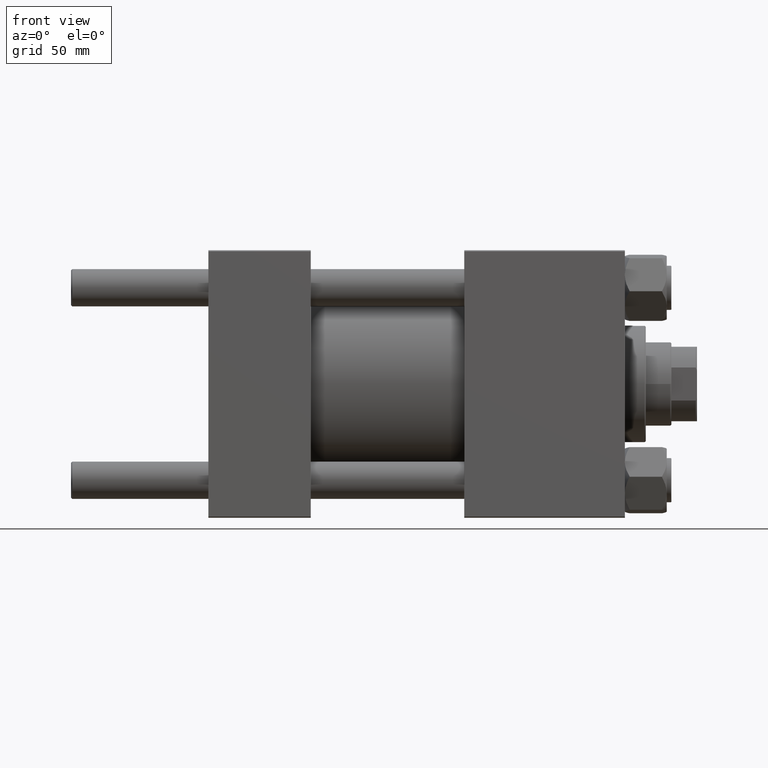
[diagram: clean part render]
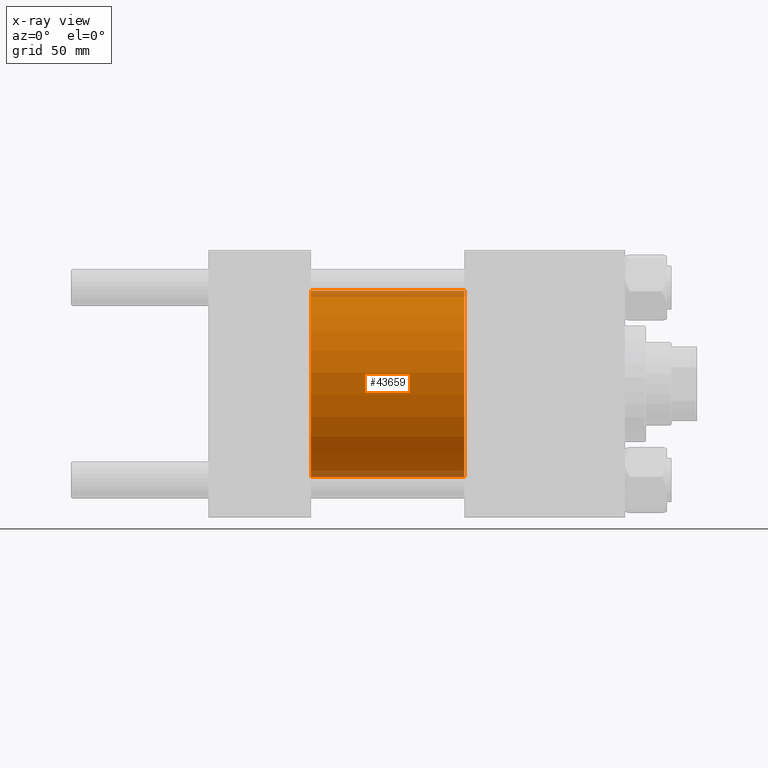
[diagram: x-ray — body ghosted, one internal face saturated and labeled with its STEP entity id]
A machine part, front view, then the same camera in x-ray: the body is ghosted and one INTERNAL B-rep face — a face not visible from any outside direction — is saturated and labeled: STEP entity #43659.
In plain terms, the highlighted cylindrical surface (partial cylindrical patch) has radius 40 mm, axis along (-1, -0, -0).
Its self-contained STEP definition (entity closure, byte-faithful):
#700 = ORIENTED_EDGE ( 'NONE', *, *, #24106, .T. ) ;
#990 = ORIENTED_EDGE ( 'NONE', *, *, #26961, .F. ) ;
#1231 = VERTEX_POINT ( 'NONE', #49771 ) ;
#1243 = CARTESIAN_POINT ( 'NONE',  ( 110.0000000000000000, 0.000000000000000000, 0.000000000000000000 ) ) ;
#1990 = DIRECTION ( 'NONE',  ( 0.000000000000000000, 0.000000000000000000, 1.000000000000000000 ) ) ;
#6398 = LINE ( 'NONE', #26242, #49351 ) ;
#11619 = CARTESIAN_POINT ( 'NONE',  ( 44.00000000000000000, 4.898587196589413026E-15, -40.00000000000000000 ) ) ;
#11653 = CIRCLE ( 'NONE', #47487, 40.00000000000000000 ) ;
#12141 = VERTEX_POINT ( 'NONE', #26754 ) ;
#13441 = FACE_OUTER_BOUND ( 'NONE', #50329, .T. ) ;
#15984 = DIRECTION ( 'NONE',  ( 1.000000000000000000, 0.000000000000000000, 0.000000000000000000 ) ) ;
#16336 = DIRECTION ( 'NONE',  ( 1.000000000000000000, 0.000000000000000000, 0.000000000000000000 ) ) ;
#16652 = AXIS2_PLACEMENT_3D ( 'NONE', #25001, #16336, #16848 ) ;
#16848 = DIRECTION ( 'NONE',  ( 0.000000000000000000, 0.000000000000000000, -1.000000000000000000 ) ) ;
#18110 = DIRECTION ( 'NONE',  ( -1.000000000000000000, -0.000000000000000000, -0.000000000000000000 ) ) ;
#19039 = EDGE_CURVE ( 'NONE', #23539, #47881, #22315, .T. ) ;
#19637 = ORIENTED_EDGE ( 'NONE', *, *, #19039, .F. ) ;
#20586 = ORIENTED_EDGE ( 'NONE', *, *, #36346, .T. ) ;
#20826 = CARTESIAN_POINT ( 'NONE',  ( 110.0000000000000000, 0.000000000000000000, 0.000000000000000000 ) ) ;
#21342 = CYLINDRICAL_SURFACE ( 'NONE', #45962, 40.00000000000000000 ) ;
#22315 = CIRCLE ( 'NONE', #16652, 40.00000000000000000 ) ;
#23539 = VERTEX_POINT ( 'NONE', #28372 ) ;
#24106 = EDGE_CURVE ( 'NONE', #1231, #47881, #6398, .T. ) ;
#25001 = CARTESIAN_POINT ( 'NONE',  ( 44.00000000000000000, 0.000000000000000000, 0.000000000000000000 ) ) ;
#26242 = CARTESIAN_POINT ( 'NONE',  ( 110.0000000000000000, 4.898587196589413026E-15, -40.00000000000000000 ) ) ;
#26754 = CARTESIAN_POINT ( 'NONE',  ( 110.0000000000000000, 0.000000000000000000, 40.00000000000000000 ) ) ;
#26961 = EDGE_CURVE ( 'NONE', #12141, #23539, #31933, .T. ) ;
#27094 = DIRECTION ( 'NONE',  ( -1.000000000000000000, -0.000000000000000000, -0.000000000000000000 ) ) ;
#28372 = CARTESIAN_POINT ( 'NONE',  ( 44.00000000000000000, 0.000000000000000000, 40.00000000000000000 ) ) ;
#31673 = CARTESIAN_POINT ( 'NONE',  ( 110.0000000000000000, 0.000000000000000000, 40.00000000000000000 ) ) ;
#31933 = LINE ( 'NONE', #31673, #37136 ) ;
#36346 = EDGE_CURVE ( 'NONE', #12141, #1231, #11653, .T. ) ;
#36359 = DIRECTION ( 'NONE',  ( 0.000000000000000000, 0.000000000000000000, -1.000000000000000000 ) ) ;
#36873 = DIRECTION ( 'NONE',  ( -1.000000000000000000, -0.000000000000000000, -0.000000000000000000 ) ) ;
#37136 = VECTOR ( 'NONE', #27094, 1000.000000000000000 ) ;
#43659 = ADVANCED_FACE ( 'NONE', ( #13441 ), #21342, .F. ) ;
#45962 = AXIS2_PLACEMENT_3D ( 'NONE', #1243, #36873, #1990 ) ;
#47487 = AXIS2_PLACEMENT_3D ( 'NONE', #20826, #15984, #36359 ) ;
#47881 = VERTEX_POINT ( 'NONE', #11619 ) ;
#49351 = VECTOR ( 'NONE', #18110, 1000.000000000000000 ) ;
#49771 = CARTESIAN_POINT ( 'NONE',  ( 110.0000000000000000, 4.898587196589413026E-15, -40.00000000000000000 ) ) ;
#50329 = EDGE_LOOP ( 'NONE', ( #20586, #700, #19637, #990 ) ) ;